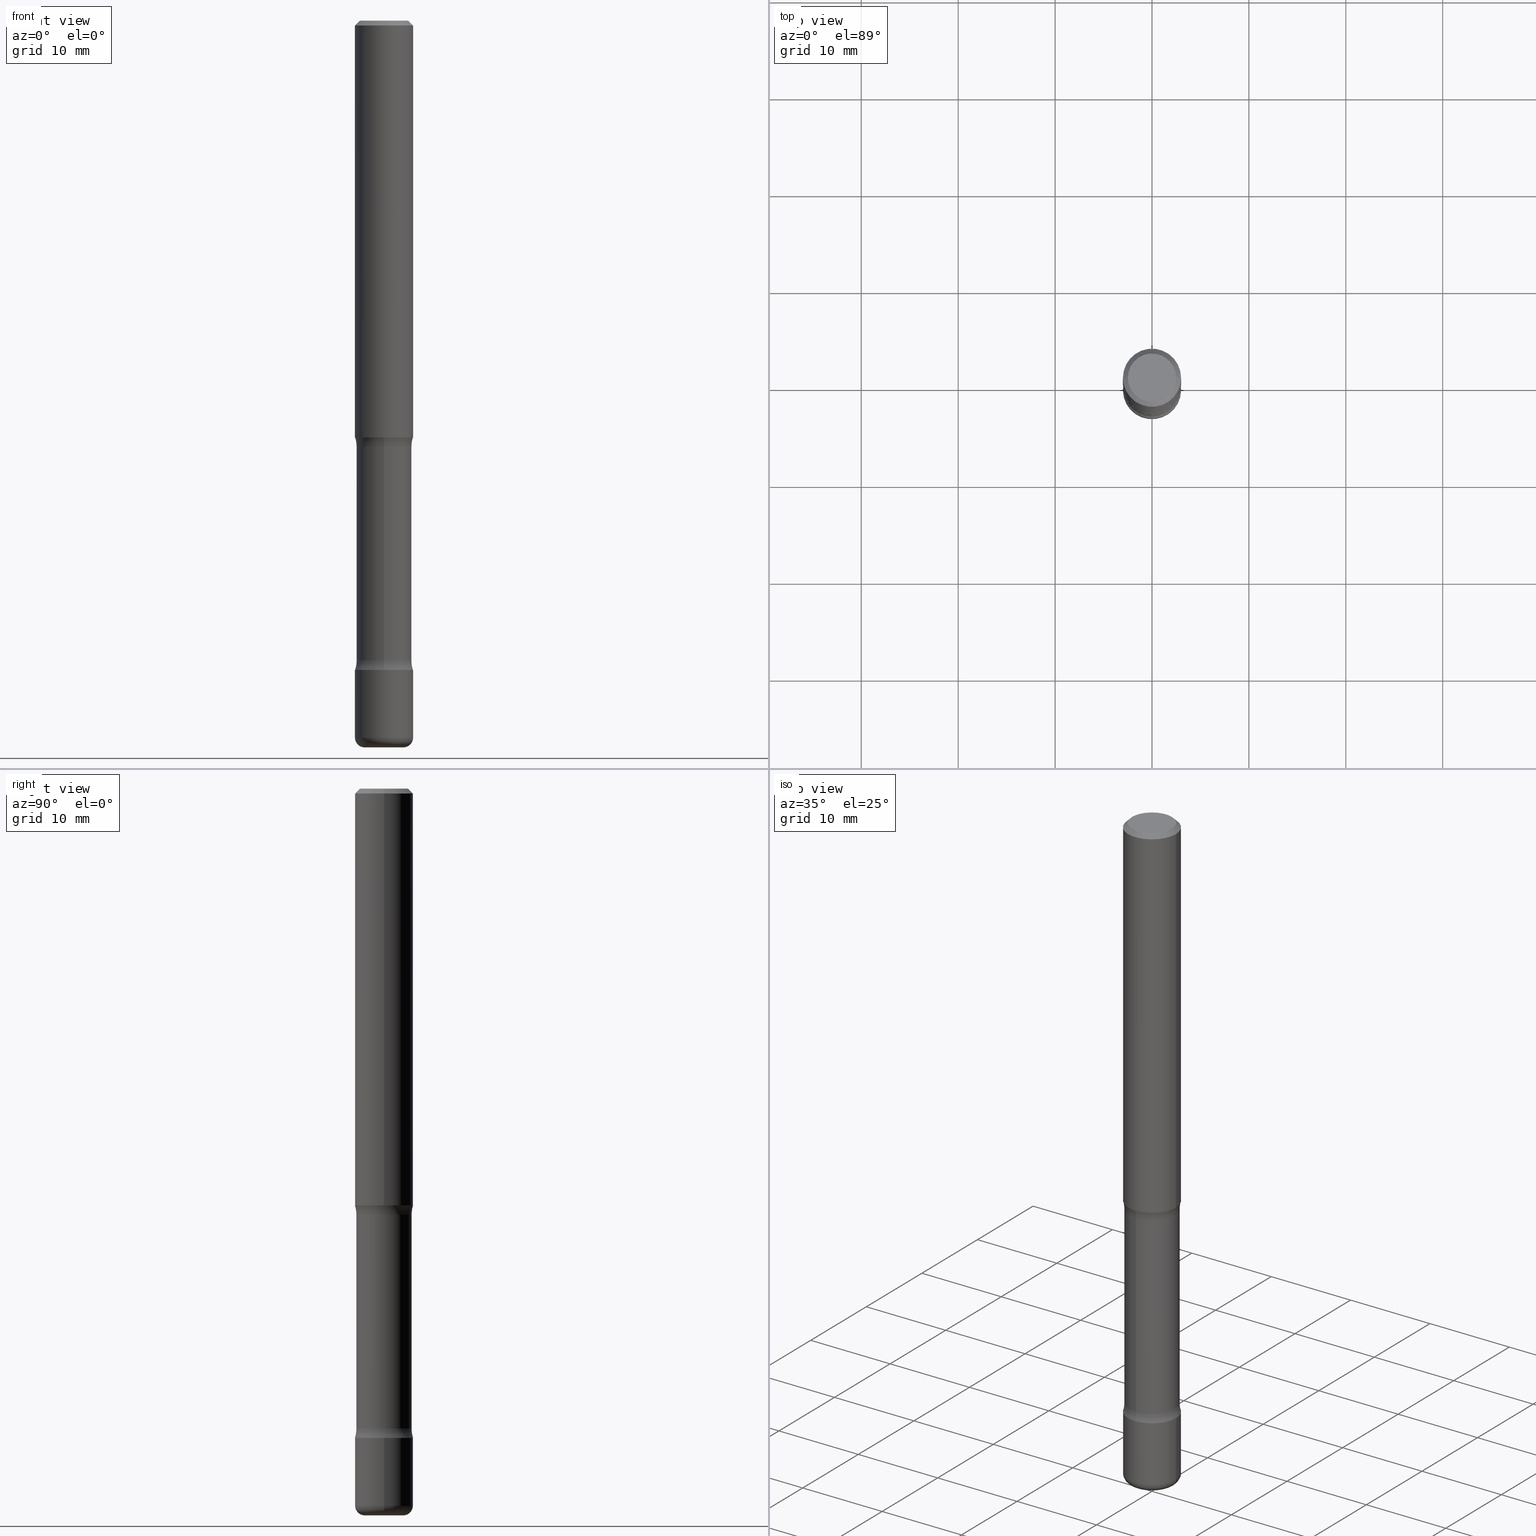
[diagram: canonical four-view strip — front | top / right | iso, engineering-drawing reading convention]
A machine part, canonical four-view strip (front | top / right | iso — engineering-drawing reading convention). The complete STEP part file that produces these views, byte-faithful:
ISO-10303-21;
HEADER;
FILE_DESCRIPTION (( 'STEP AP203' ),
    '1' );
FILE_NAME ('45187.STEP',
    '2024-03-02T05:05:20',
    ( '' ),
    ( '' ),
    'SwSTEP 2.0',
    'SolidWorks 2023',
    '' );
FILE_SCHEMA (( 'CONFIG_CONTROL_DESIGN' ));
ENDSEC;

DATA;
#1 = EDGE_LOOP ( 'NONE', ( #221, #207, #180, #419 ) ) ;
#2 = DIRECTION ( 'NONE',  ( 1.000000000000000000, 0.000000000000000000, 0.000000000000000000 ) ) ;
#3 = ADVANCED_FACE ( 'NONE', ( #223 ), #355, .T. ) ;
#4 = VERTEX_POINT ( 'NONE', #22 ) ;
#5 = CALENDAR_DATE ( 2024, 2, 3 ) ;
#6 = CIRCLE ( 'NONE', #269, 0.1180999999999992472 ) ;
#7 = ORIENTED_EDGE ( 'NONE', *, *, #517, .F. ) ;
#8 = PLANE ( 'NONE',  #110 ) ;
#9 = PERSON_AND_ORGANIZATION ( #348, #149 ) ;
#10 = ADVANCED_FACE ( 'NONE', ( #547 ), #144, .T. ) ;
#11 = CYLINDRICAL_SURFACE ( 'NONE', #291, 0.1119999999999993778 ) ;
#12 = EDGE_LOOP ( 'NONE', ( #485, #226 ) ) ;
#13 = DIRECTION ( 'NONE',  ( 6.982962677686265922E-15, 1.000000000000000000, -4.718596271060237416E-15 ) ) ;
#14 = EDGE_LOOP ( 'NONE', ( #340, #538, #236, #64 ) ) ;
#15 = DIMENSIONAL_EXPONENTS ( 1.000000000000000000, 0.000000000000000000, 0.000000000000000000, 0.000000000000000000, 0.000000000000000000, 0.000000000000000000, 0.000000000000000000 ) ;
#16 = APPROVAL_ROLE ( '' ) ;
#17 = CARTESIAN_POINT ( 'NONE',  ( 6.404022266748872909E-29, -9.006860273218774693E-15, -2.599228119050268404 ) ) ;
#18 = EDGE_LOOP ( 'NONE', ( #523, #46, #265, #234 ) ) ;
#19 = AXIS2_PLACEMENT_3D ( 'NONE', #391, #515, #342 ) ;
#20 = LOCAL_TIME ( 0, 5, 20.00000000000000000, #251 ) ;
#21 = DIRECTION ( 'NONE',  ( 1.000000000000000000, -6.982962677686247778E-15, 0.000000000000000000 ) ) ;
#22 = CARTESIAN_POINT ( 'NONE',  ( -0.1181000000000007877, -9.332930761652935594E-15, -2.913399999999998879 ) ) ;
#23 = CARTESIAN_POINT ( 'NONE',  ( 5.011042631637117785E-29, -4.933704852319903840E-15, -1.731571880949727804 ) ) ;
#24 = DIRECTION ( 'NONE',  ( 1.000000000000000000, -6.982962677686267499E-15, 0.000000000000000000 ) ) ;
#25 = ORIENTED_EDGE ( 'NONE', *, *, #227, .T. ) ;
#26 = DIRECTION ( 'NONE',  ( 1.000000000000000000, -6.982962677686265922E-15, 0.000000000000000000 ) ) ;
#27 = ORIENTED_EDGE ( 'NONE', *, *, #155, .F. ) ;
#28 = AXIS2_PLACEMENT_3D ( 'NONE', #279, #283, #67 ) ;
#29 = CIRCLE ( 'NONE', #112, 0.03940000000000045549 ) ;
#30 = CARTESIAN_POINT ( 'NONE',  ( 6.450657616955149868E-29, -9.209829475600442370E-15, -2.637799999999998146 ) ) ;
#31 = ADVANCED_FACE ( 'NONE', ( #139 ), #312, .F. ) ;
#32 = ORIENTED_EDGE ( 'NONE', *, *, #224, .F. ) ;
#33 = CARTESIAN_POINT ( 'NONE',  ( 4.140178688871433218E-29, -5.911077906661440642E-15, -1.692999999999998506 ) ) ;
#34 = CC_DESIGN_DATE_AND_TIME_ASSIGNMENT ( #486, #162, ( #386 ) ) ;
#35 = CONICAL_SURFACE ( 'NONE', #429, 0.1181000000000003020, 0.7853981633974480570 ) ;
#36 = LOCAL_TIME ( 0, 5, 20.00000000000000000, #304 ) ;
#37 = CARTESIAN_POINT ( 'NONE',  ( 4.140178688871433218E-29, -5.911077906661440642E-15, -1.692999999999998506 ) ) ;
#38 = DATE_AND_TIME ( #131, #491 ) ;
#39 = PERSON_AND_ORGANIZATION_ROLE ( 'design_owner' ) ;
#40 = AXIS2_PLACEMENT_3D ( 'NONE', #103, #468, #560 ) ;
#41 = VECTOR ( 'NONE', #392, 39.37007874015748143 ) ;
#42 = ORIENTED_EDGE ( 'NONE', *, *, #541, .T. ) ;
#43 =( NAMED_UNIT ( * ) PLANE_ANGLE_UNIT ( ) SI_UNIT ( $, .RADIAN. ) );
#44 = ORIENTED_EDGE ( 'NONE', *, *, #540, .T. ) ;
#45 = EDGE_CURVE ( 'NONE', #398, #85, #6, .T. ) ;
#46 = ORIENTED_EDGE ( 'NONE', *, *, #235, .T. ) ;
#47 = EDGE_CURVE ( 'NONE', #447, #417, #244, .T. ) ;
#48 = CARTESIAN_POINT ( 'NONE',  ( 0.000000000000000000, 0.000000000000000000, 0.000000000000000000 ) ) ;
#49 = DIRECTION ( 'NONE',  ( -2.445468806185136597E-29, 3.491481338843145583E-15, 1.000000000000000000 ) ) ;
#50 = DIRECTION ( 'NONE',  ( 1.000000000000000000, -6.982962677686267499E-15, 0.000000000000000000 ) ) ;
#51 = CIRCLE ( 'NONE', #217, 0.1249999999999999584 ) ;
#52 = AXIS2_PLACEMENT_3D ( 'NONE', #23, #320, #151 ) ;
#53 = ORIENTED_EDGE ( 'NONE', *, *, #242, .F. ) ;
#54 = ORIENTED_EDGE ( 'NONE', *, *, #461, .T. ) ;
#55 = CC_DESIGN_DATE_AND_TIME_ASSIGNMENT ( #173, #394, ( #118 ) ) ;
#56 = CARTESIAN_POINT ( 'NONE',  ( -0.1181000000000004407, -8.851804633160347123E-15, -2.637799999999998146 ) ) ;
#57 = CARTESIAN_POINT ( 'NONE',  ( -1.625938025471788234E-15, -0.2370000000000089257, -2.599228119050267516 ) ) ;
#58 = DIRECTION ( 'NONE',  ( 2.445468806185136597E-29, -3.491481338843145583E-15, -1.000000000000000000 ) ) ;
#59 = CIRCLE ( 'NONE', #421, 0.1181000000000006489 ) ;
#60 = CC_DESIGN_APPROVAL ( #518, ( #337 ) ) ;
#61 = ADVANCED_FACE ( 'NONE', ( #161 ), #70, .T. ) ;
#62 = ORIENTED_EDGE ( 'NONE', *, *, #374, .T. ) ;
#63 = DIRECTION ( 'NONE',  ( 1.000000000000000000, -6.982962677686266711E-15, 4.876176775795935793E-29 ) ) ;
#64 = ORIENTED_EDGE ( 'NONE', *, *, #185, .F. ) ;
#65 = LINE ( 'NONE', #239, #407 ) ;
#66 = AXIS2_PLACEMENT_3D ( 'NONE', #164, #347, #168 ) ;
#67 = DIRECTION ( 'NONE',  ( 1.000000000000000000, -6.982962677686266711E-15, 0.000000000000000000 ) ) ;
#68 = CC_DESIGN_PERSON_AND_ORGANIZATION_ASSIGNMENT ( #514, #125, ( #386 ) ) ;
#69 = DIRECTION ( 'NONE',  ( -2.445468806185136597E-29, 3.491481338843145583E-15, 1.000000000000000000 ) ) ;
#70 = CYLINDRICAL_SURFACE ( 'NONE', #325, 0.1181000000000005656 ) ;
#71 = DIRECTION ( 'NONE',  ( 6.982962677686265922E-15, 1.000000000000000000, -4.626330217890351981E-15 ) ) ;
#72 = CLOSED_SHELL ( 'NONE', ( #250, #306, #31, #290, #104, #264, #389, #301 ) ) ;
#73 = CIRCLE ( 'NONE', #557, 0.1249999999999999584 ) ;
#74 = LENGTH_MEASURE_WITH_UNIT ( LENGTH_MEASURE( 0.02539999999999999897 ), #554 );
#75 = APPROVAL_STATUS ( 'not_yet_approved' ) ;
#76 = DIRECTION ( 'NONE',  ( -2.445468806185136877E-29, 3.491481338843145188E-15, 1.000000000000000000 ) ) ;
#77 = EDGE_LOOP ( 'NONE', ( #418, #42, #87, #152 ) ) ;
#78 = ADVANCED_FACE ( 'NONE', ( #513 ), #425, .T. ) ;
#79 = CIRCLE ( 'NONE', #556, 0.1181000000000004407 ) ;
#80 = VECTOR ( 'NONE', #478, 39.37007874015748143 ) ;
#81 = EDGE_LOOP ( 'NONE', ( #188, #255 ) ) ;
#82 = FACE_OUTER_BOUND ( 'NONE', #1, .T. ) ;
#83 = DIRECTION ( 'NONE',  ( -2.445468806185136877E-29, 3.491481338843145188E-15, 1.000000000000000000 ) ) ;
#84 = DIRECTION ( 'NONE',  ( -2.445468806185136597E-29, 3.491481338843145583E-15, 1.000000000000000000 ) ) ;
#85 = VERTEX_POINT ( 'NONE', #380 ) ;
#86 = CARTESIAN_POINT ( 'NONE',  ( -7.893002946435583008E-16, -0.1120000000000037355, -1.731571880949727360 ) ) ;
#87 = ORIENTED_EDGE ( 'NONE', *, *, #336, .F. ) ;
#88 = PLANE ( 'NONE',  #385 ) ;
#89 = PLANE ( 'NONE',  #552 ) ;
#90 = TOROIDAL_SURFACE ( 'NONE', #448, 0.07870000000000045015, 0.03940000000000045549 ) ;
#91 = CIRCLE ( 'NONE', #245, 0.1181000000000004407 ) ;
#92 = ORIENTED_EDGE ( 'NONE', *, *, #243, .F. ) ;
#93 = CARTESIAN_POINT ( 'NONE',  ( 7.220980290903470182E-29, -1.030964609733603853E-14, -2.952799999999999869 ) ) ;
#94 = CARTESIAN_POINT ( 'NONE',  ( 4.949768150455351141E-29, -4.751699718702731192E-15, -1.692999999999998284 ) ) ;
#95 = ORIENTED_EDGE ( 'NONE', *, *, #508, .T. ) ;
#96 = EDGE_CURVE ( 'NONE', #481, #277, #261, .T. ) ;
#97 = DIRECTION ( 'NONE',  ( 1.588579028894789859E-29, -4.718596271060237416E-15, -1.000000000000000000 ) ) ;
#98 = ORIENTED_EDGE ( 'NONE', *, *, #227, .F. ) ;
#99 = TOROIDAL_SURFACE ( 'NONE', #548, 0.2369999999999987395, 0.1249999999999999584 ) ;
#100 = DIRECTION ( 'NONE',  ( -1.000000000000000000, 6.982962677686265922E-15, -4.876176775795935793E-29 ) ) ;
#101 = ORIENTED_EDGE ( 'NONE', *, *, #446, .T. ) ;
#102 = EDGE_LOOP ( 'NONE', ( #460, #440, #271, #124 ) ) ;
#103 = CARTESIAN_POINT ( 'NONE',  ( 7.124628819939774466E-29, -1.017208173258561774E-14, -2.913399999999998879 ) ) ;
#104 = ADVANCED_FACE ( 'NONE', ( #399 ), #354, .F. ) ;
#105 = AXIS2_PLACEMENT_3D ( 'NONE', #142, #377, #150 ) ;
#106 = DIRECTION ( 'NONE',  ( 1.588579028894789859E-29, -4.718596271060237416E-15, -1.000000000000000000 ) ) ;
#107 = CARTESIAN_POINT ( 'NONE',  ( -0.1181000000000004824, 8.391509709326817470E-16, -5.809262341591066905E-30 ) ) ;
#108 = DIRECTION ( 'NONE',  ( -2.445468806185136597E-29, 3.491481338843145583E-15, 1.000000000000000000 ) ) ;
#109 = DIRECTION ( 'NONE',  ( -2.445468806185136597E-29, 3.491481338843145583E-15, 1.000000000000000000 ) ) ;
#110 = AXIS2_PLACEMENT_3D ( 'NONE', #295, #179, #351 ) ;
#111 = CARTESIAN_POINT ( 'NONE',  ( 7.124628819939774466E-29, -1.017208173258561774E-14, -2.913399999999998879 ) ) ;
#112 = AXIS2_PLACEMENT_3D ( 'NONE', #194, #200, #553 ) ;
#113 = PERSON_AND_ORGANIZATION ( #348, #149 ) ;
#114 = ORIENTED_EDGE ( 'NONE', *, *, #248, .F. ) ;
#115 = CARTESIAN_POINT ( 'NONE',  ( 8.350811314681758556E-46, -1.192274536304357760E-31, -3.414809992080329023E-17 ) ) ;
#116 = MECHANICAL_CONTEXT ( 'NONE', #136, 'mechanical' ) ;
#117 = DIRECTION ( 'NONE',  ( -6.982962677686266711E-15, -1.000000000000000000, 3.491481338843145583E-15 ) ) ;
#118 = PRODUCT_DEFINITION ( 'UNKNOWN', '', #337, #469 ) ;
#119 = ORIENTED_EDGE ( 'NONE', *, *, #498, .T. ) ;
#120 = ADVANCED_FACE ( 'NONE', ( #456 ), #35, .T. ) ;
#121 = CARTESIAN_POINT ( 'NONE',  ( 0.07870000000000045015, -1.085920526006994994E-14, -2.952799999999999869 ) ) ;
#122 = AXIS2_PLACEMENT_3D ( 'NONE', #93, #445, #272 ) ;
#123 = LOCAL_TIME ( 0, 5, 20.00000000000000000, #323 ) ;
#124 = ORIENTED_EDGE ( 'NONE', *, *, #516, .F. ) ;
#125 = PERSON_AND_ORGANIZATION_ROLE ( 'classification_officer' ) ;
#126 = CARTESIAN_POINT ( 'NONE',  ( 6.450657616955149868E-29, -9.209829475600442370E-15, -2.637799999999998146 ) ) ;
#127 = DIRECTION ( 'NONE',  ( 1.588579028894789859E-29, -4.718596271060237416E-15, -1.000000000000000000 ) ) ;
#128 = LINE ( 'NONE', #317, #41 ) ;
#129 = ORIENTED_EDGE ( 'NONE', *, *, #45, .T. ) ;
#130 = ADVANCED_FACE ( 'NONE', ( #153 ), #512, .T. ) ;
#131 = CALENDAR_DATE ( 2024, 2, 3 ) ;
#132 = CARTESIAN_POINT ( 'NONE',  ( 0.1181000000000005656, -8.246878922347520097E-16, 5.758764772215027766E-30 ) ) ;
#133 = DIRECTION ( 'NONE',  ( -2.445468806185136597E-29, 3.491481338843145583E-15, 1.000000000000000000 ) ) ;
#134 = EDGE_LOOP ( 'NONE', ( #140, #543, #129, #476 ) ) ;
#135 = AXIS2_PLACEMENT_3D ( 'NONE', #17, #368, #542 ) ;
#136 = APPLICATION_CONTEXT ( 'configuration controlled 3d designs of mechanical parts and assemblies' ) ;
#137 = FACE_OUTER_BOUND ( 'NONE', #488, .T. ) ;
#138 = CC_DESIGN_SECURITY_CLASSIFICATION ( #386, ( #337 ) ) ;
#139 = FACE_OUTER_BOUND ( 'NONE', #134, .T. ) ;
#140 = ORIENTED_EDGE ( 'NONE', *, *, #461, .F. ) ;
#141 = EDGE_CURVE ( 'NONE', #85, #398, #148, .T. ) ;
#142 = CARTESIAN_POINT ( 'NONE',  ( 4.140178688871433218E-29, -5.911077906661440642E-15, -1.692999999999998506 ) ) ;
#143 = PRODUCT_DEFINITION_SHAPE ( 'NONE', 'NONE',  #118 ) ;
#144 = PLANE ( 'NONE',  #479 ) ;
#145 = CALENDAR_DATE ( 2024, 2, 3 ) ;
#146 = VERTEX_POINT ( 'NONE', #199 ) ;
#147 = AXIS2_PLACEMENT_3D ( 'NONE', #411, #58, #189 ) ;
#148 = CIRCLE ( 'NONE', #405, 0.1180999999999992472 ) ;
#149 = ORGANIZATION ( 'UNSPECIFIED', 'UNSPECIFIED', '' ) ;
#150 = DIRECTION ( 'NONE',  ( 1.000000000000000000, -6.982962677686265922E-15, 4.876176775795935793E-29 ) ) ;
#151 = DIRECTION ( 'NONE',  ( 6.982962677686266711E-15, 1.000000000000000000, -4.878299988686236186E-15 ) ) ;
#152 = ORIENTED_EDGE ( 'NONE', *, *, #333, .F. ) ;
#153 = FACE_OUTER_BOUND ( 'NONE', #77, .T. ) ;
#154 = CARTESIAN_POINT ( 'NONE',  ( -7.683757757503377165E-16, -0.1120000000000100637, -2.952799999999998093 ) ) ;
#155 = EDGE_CURVE ( 'NONE', #146, #277, #341, .T. ) ;
#156 = CARTESIAN_POINT ( 'NONE',  ( 0.1181000000000007877, -1.099676962482037073E-14, -2.913399999999998879 ) ) ;
#157 = CARTESIAN_POINT ( 'NONE',  ( 6.450657616955149868E-29, -9.209829475600442370E-15, -2.637799999999998146 ) ) ;
#158 = CIRCLE ( 'NONE', #455, 0.1181000000000004407 ) ;
#159 = CIRCLE ( 'NONE', #430, 0.1119999999999999607 ) ;
#160 = ADVANCED_BREP_SHAPE_REPRESENTATION ( '45187', ( #433, #237, #428, #345 ), #302 ) ;
#161 = FACE_OUTER_BOUND ( 'NONE', #298, .T. ) ;
#162 = DATE_TIME_ROLE ( 'classification_date' ) ;
#163 = CC_DESIGN_APPROVAL ( #499, ( #118 ) ) ;
#164 = CARTESIAN_POINT ( 'NONE',  ( 1.654962154611708445E-15, 0.2369999999999909124, -2.599228119050269292 ) ) ;
#165 = ORIENTED_EDGE ( 'NONE', *, *, #498, .F. ) ;
#166 = PERSON_AND_ORGANIZATION_ROLE ( 'creator' ) ;
#167 = EDGE_CURVE ( 'NONE', #417, #318, #473, .T. ) ;
#168 = DIRECTION ( 'NONE',  ( -6.982962677686265922E-15, -1.000000000000000000, 0.000000000000000000 ) ) ;
#169 = CC_DESIGN_PERSON_AND_ORGANIZATION_ASSIGNMENT ( #9, #39, ( #465 ) ) ;
#170 = ORIENTED_EDGE ( 'NONE', *, *, #416, .T. ) ;
#171 = LINE ( 'NONE', #484, #379 ) ;
#172 = ORIENTED_EDGE ( 'NONE', *, *, #96, .T. ) ;
#173 = DATE_AND_TIME ( #5, #286 ) ;
#174 = DIRECTION ( 'NONE',  ( 6.982962677686265922E-15, 1.000000000000000000, -4.878299988686211732E-15 ) ) ;
#175 = CC_DESIGN_APPROVAL ( #397, ( #386 ) ) ;
#176 = ORIENTED_EDGE ( 'NONE', *, *, #47, .F. ) ;
#177 = APPLICATION_PROTOCOL_DEFINITION ( 'international standard', 'config_control_design', 1994, #435 ) ;
#178 = FACE_OUTER_BOUND ( 'NONE', #102, .T. ) ;
#179 = DIRECTION ( 'NONE',  ( 2.438088387897960049E-29, -3.491481338843145188E-15, -1.000000000000000000 ) ) ;
#180 = ORIENTED_EDGE ( 'NONE', *, *, #540, .F. ) ;
#181 = DIRECTION ( 'NONE',  ( 1.588579028894789859E-29, -4.718596271060237416E-15, -1.000000000000000000 ) ) ;
#182 = DIRECTION ( 'NONE',  ( 2.438088387897960049E-29, -3.491481338843145188E-15, -1.000000000000000000 ) ) ;
#183 = APPROVAL_DATE_TIME ( #412, #397 ) ;
#184 = VECTOR ( 'NONE', #437, 39.37007874015748143 ) ;
#185 = EDGE_CURVE ( 'NONE', #4, #458, #218, .T. ) ;
#186 = VERTEX_POINT ( 'NONE', #475 ) ;
#187 = DIRECTION ( 'NONE',  ( 1.588579028894789859E-29, -4.718596271060237416E-15, -1.000000000000000000 ) ) ;
#188 = ORIENTED_EDGE ( 'NONE', *, *, #224, .T. ) ;
#189 = DIRECTION ( 'NONE',  ( -1.000000000000000000, 6.982962677686266711E-15, 0.000000000000000000 ) ) ;
#190 = AXIS2_PLACEMENT_3D ( 'NONE', #503, #501, #316 ) ;
#191 = EDGE_CURVE ( 'NONE', #303, #146, #59, .T. ) ;
#192 = CARTESIAN_POINT ( 'NONE',  ( 7.220980290903470182E-29, -1.030964609733603853E-14, -2.952799999999999869 ) ) ;
#193 = CARTESIAN_POINT ( 'NONE',  ( 4.890937612370289799E-31, -6.982962677686315028E-17, -0.02000000000000006981 ) ) ;
#194 = CARTESIAN_POINT ( 'NONE',  ( -0.07870000000000045015, -9.612884599542415790E-15, -2.913399999999998879 ) ) ;
#195 = DIRECTION ( 'NONE',  ( -2.445468806185136597E-29, 3.491481338843145583E-15, 1.000000000000000000 ) ) ;
#196 = CLOSED_SHELL ( 'NONE', ( #525, #3, #120, #535, #371, #322 ) ) ;
#197 = VECTOR ( 'NONE', #76, 39.37007874015748143 ) ;
#198 = DIRECTION ( 'NONE',  ( -2.445468806185136597E-29, 3.491481338843145583E-15, 1.000000000000000000 ) ) ;
#199 = CARTESIAN_POINT ( 'NONE',  ( -0.1181000000000006628, -2.151302795786464307E-15, -1.692999999999998506 ) ) ;
#200 = DIRECTION ( 'NONE',  ( 7.105427357601001859E-15, 1.000000000000000000, -3.491481338843145583E-15 ) ) ;
#201 = CARTESIAN_POINT ( 'NONE',  ( 0.1181000000000003020, -8.800544403136831054E-16, -0.02000000000000006981 ) ) ;
#202 = FACE_OUTER_BOUND ( 'NONE', #232, .T. ) ;
#203 = PERSON_AND_ORGANIZATION ( #348, #149 ) ;
#204 = CIRCLE ( 'NONE', #122, 0.07870000000000045015 ) ;
#205 = CC_DESIGN_PERSON_AND_ORGANIZATION_ASSIGNMENT ( #203, #346, ( #337 ) ) ;
#206 = AXIS2_PLACEMENT_3D ( 'NONE', #254, #522, #339 ) ;
#207 = ORIENTED_EDGE ( 'NONE', *, *, #517, .T. ) ;
#208 = PERSON_AND_ORGANIZATION_ROLE ( 'creator' ) ;
#209 = CARTESIAN_POINT ( 'NONE',  ( 7.124628819939774466E-29, -1.017208173258561774E-14, -2.913399999999998879 ) ) ;
#210 = ORIENTED_EDGE ( 'NONE', *, *, #331, .F. ) ;
#211 = PERSON_AND_ORGANIZATION ( #348, #149 ) ;
#212 = EDGE_CURVE ( 'NONE', #458, #387, #305, .T. ) ;
#213 = DIRECTION ( 'NONE',  ( -2.445468806185136877E-29, 3.491481338843145188E-15, 1.000000000000000000 ) ) ;
#214 = EDGE_LOOP ( 'NONE', ( #381, #170 ) ) ;
#215 = APPLICATION_PROTOCOL_DEFINITION ( 'international standard', 'config_control_design', 1994, #136 ) ;
#216 = DIRECTION ( 'NONE',  ( -6.982962677686265922E-15, -1.000000000000000000, 4.718596271060237416E-15 ) ) ;
#217 = AXIS2_PLACEMENT_3D ( 'NONE', #241, #246, #332 ) ;
#218 = CIRCLE ( 'NONE', #258, 0.1181000000000006767 ) ;
#219 = AXIS2_PLACEMENT_3D ( 'NONE', #115, #198, #427 ) ;
#220 = FACE_OUTER_BOUND ( 'NONE', #353, .T. ) ;
#221 = ORIENTED_EDGE ( 'NONE', *, *, #504, .T. ) ;
#222 = CARTESIAN_POINT ( 'NONE',  ( 0.000000000000000000, 0.000000000000000000, 0.000000000000000000 ) ) ;
#223 = FACE_OUTER_BOUND ( 'NONE', #18, .T. ) ;
#224 = EDGE_CURVE ( 'NONE', #186, #447, #79, .T. ) ;
#225 = CARTESIAN_POINT ( 'NONE',  ( -0.07870000000000045015, -9.541689862972883722E-15, -2.952799999999999869 ) ) ;
#226 = ORIENTED_EDGE ( 'NONE', *, *, #45, .F. ) ;
#227 = EDGE_CURVE ( 'NONE', #277, #275, #471, .T. ) ;
#228 = EDGE_CURVE ( 'NONE', #296, #398, #51, .T. ) ;
#229 = CARTESIAN_POINT ( 'NONE',  ( 6.389383135773382663E-29, -9.027824341983271300E-15, -2.599228119050268848 ) ) ;
#230 = DIRECTION ( 'NONE',  ( 6.982962677686265922E-15, 1.000000000000000000, -4.878299988686185699E-15 ) ) ;
#231 = VECTOR ( 'NONE', #83, 39.37007874015748143 ) ;
#232 = EDGE_LOOP ( 'NONE', ( #267, #62 ) ) ;
#233 = DIRECTION ( 'NONE',  ( 1.000000000000000000, -6.982962677686266711E-15, 0.000000000000000000 ) ) ;
#234 = ORIENTED_EDGE ( 'NONE', *, *, #96, .F. ) ;
#235 = EDGE_CURVE ( 'NONE', #349, #275, #390, .T. ) ;
#236 = ORIENTED_EDGE ( 'NONE', *, *, #333, .T. ) ;
#237 = MANIFOLD_SOLID_BREP ( 'Body-Move/Copy2[2]', #196 ) ;
#238 = FACE_OUTER_BOUND ( 'NONE', #546, .T. ) ;
#239 = CARTESIAN_POINT ( 'NONE',  ( 7.820918199009269802E-16, 0.1119999999999886919, -2.952799999999998981 ) ) ;
#240 = AXIS2_PLACEMENT_3D ( 'NONE', #222, #84, #521 ) ;
#241 = CARTESIAN_POINT ( 'NONE',  ( -1.625938025471793953E-15, -0.2370000000000036522, -1.731571880949727138 ) ) ;
#242 = EDGE_CURVE ( 'NONE', #558, #310, #414, .T. ) ;
#243 = EDGE_CURVE ( 'NONE', #387, #373, #158, .T. ) ;
#244 = CIRCLE ( 'NONE', #526, 0.1249999999999999584 ) ;
#245 = AXIS2_PLACEMENT_3D ( 'NONE', #157, #370, #545 ) ;
#246 = DIRECTION ( 'NONE',  ( 1.000000000000000000, -6.860497997771530774E-15, 4.825771055884887036E-29 ) ) ;
#247 = DIRECTION ( 'NONE',  ( -6.982962677686265922E-15, -1.000000000000000000, 0.000000000000000000 ) ) ;
#248 = EDGE_CURVE ( 'NONE', #447, #186, #276, .T. ) ;
#249 = APPROVAL_ROLE ( '' ) ;
#250 = ADVANCED_FACE ( 'NONE', ( #82 ), #289, .T. ) ;
#251 = COORDINATED_UNIVERSAL_TIME_OFFSET ( 5, 0, .BEHIND. ) ;
#252 = CARTESIAN_POINT ( 'NONE',  ( 4.140178688871433218E-29, -5.911077906661440642E-15, -1.692999999999998506 ) ) ;
#253 = CARTESIAN_POINT ( 'NONE',  ( 7.820918199009254025E-16, 0.1119999999999909263, -2.599228119050269292 ) ) ;
#254 = CARTESIAN_POINT ( 'NONE',  ( 0.000000000000000000, 0.000000000000000000, 0.000000000000000000 ) ) ;
#255 = ORIENTED_EDGE ( 'NONE', *, *, #248, .T. ) ;
#256 = CARTESIAN_POINT ( 'NONE',  ( -0.1181000000000003020, 7.548582654578872324E-16, -0.02000000000000006981 ) ) ;
#257 = PERSON_AND_ORGANIZATION ( #348, #149 ) ;
#258 = AXIS2_PLACEMENT_3D ( 'NONE', #111, #439, #294 ) ;
#259 = CIRCLE ( 'NONE', #415, 0.1181000000000006489 ) ;
#260 = ORIENTED_EDGE ( 'NONE', *, *, #185, .T. ) ;
#261 = LINE ( 'NONE', #256, #184 ) ;
#262 = CYLINDRICAL_SURFACE ( 'NONE', #206, 0.1181000000000004824 ) ;
#263 = DIRECTION ( 'NONE',  ( 1.000000000000000000, -6.982962677686262766E-15, 0.000000000000000000 ) ) ;
#264 = ADVANCED_FACE ( 'NONE', ( #358 ), #88, .F. ) ;
#265 = ORIENTED_EDGE ( 'NONE', *, *, #466, .T. ) ;
#266 = CALENDAR_DATE ( 2024, 2, 3 ) ;
#267 = ORIENTED_EDGE ( 'NONE', *, *, #493, .T. ) ;
#268 = CLOSED_SHELL ( 'NONE', ( #78, #130, #10, #315, #61, #314 ) ) ;
#269 = AXIS2_PLACEMENT_3D ( 'NONE', #94, #187, #273 ) ;
#270 = CIRCLE ( 'NONE', #219, 0.09810000000000028419 ) ;
#271 = ORIENTED_EDGE ( 'NONE', *, *, #466, .F. ) ;
#272 = DIRECTION ( 'NONE',  ( 1.000000000000000000, -6.982962677686254878E-15, 0.000000000000000000 ) ) ;
#273 = DIRECTION ( 'NONE',  ( 6.982962677686265922E-15, 1.000000000000000000, -4.626330217890399313E-15 ) ) ;
#274 = CARTESIAN_POINT ( 'NONE',  ( 7.820918199009036102E-16, 0.1119999999999938822, -1.731571880949728470 ) ) ;
#275 = VERTEX_POINT ( 'NONE', #406 ) ;
#276 = CIRCLE ( 'NONE', #357, 0.1181000000000004407 ) ;
#277 = VERTEX_POINT ( 'NONE', #533 ) ;
#278 = VERTEX_POINT ( 'NONE', #274 ) ;
#279 = CARTESIAN_POINT ( 'NONE',  ( 4.890937612370289799E-31, -6.982962677686315028E-17, -0.02000000000000006981 ) ) ;
#280 = DIRECTION ( 'NONE',  ( 1.000000000000000000, -6.982962677686266711E-15, 4.877161320636752779E-29 ) ) ;
#281 = DIRECTION ( 'NONE',  ( -2.445468806185136597E-29, 3.491481338843145583E-15, 1.000000000000000000 ) ) ;
#282 = ORIENTED_EDGE ( 'NONE', *, *, #235, .F. ) ;
#283 = DIRECTION ( 'NONE',  ( -2.445468806185136597E-29, 3.491481338843145583E-15, 1.000000000000000000 ) ) ;
#284 = CARTESIAN_POINT ( 'NONE',  ( 0.000000000000000000, 0.000000000000000000, 0.000000000000000000 ) ) ;
#285 = CIRCLE ( 'NONE', #366, 0.1181000000000006767 ) ;
#286 = LOCAL_TIME ( 0, 5, 20.00000000000000000, #524 ) ;
#287 = PRODUCT_RELATED_PRODUCT_CATEGORY ( 'detail', '', ( #465 ) ) ;
#288 = DIRECTION ( 'NONE',  ( 1.588579028894789859E-29, -4.718596271060237416E-15, -1.000000000000000000 ) ) ;
#289 = CYLINDRICAL_SURFACE ( 'NONE', #480, 0.1119999999999993778 ) ;
#290 = ADVANCED_FACE ( 'NONE', ( #423 ), #99, .F. ) ;
#291 = AXIS2_PLACEMENT_3D ( 'NONE', #410, #181, #364 ) ;
#292 = CIRCLE ( 'NONE', #52, 0.1119999999999988088 ) ;
#293 = EDGE_CURVE ( 'NONE', #310, #558, #204, .T. ) ;
#294 = DIRECTION ( 'NONE',  ( 1.000000000000000000, -6.982962677686265922E-15, 0.000000000000000000 ) ) ;
#295 = CARTESIAN_POINT ( 'NONE',  ( 6.450657616955149868E-29, -9.209829475600442370E-15, -2.637799999999998146 ) ) ;
#296 = VERTEX_POINT ( 'NONE', #86 ) ;
#297 = DIRECTION ( 'NONE',  ( 1.588579028894789859E-29, -4.718596271060237416E-15, -1.000000000000000000 ) ) ;
#298 = EDGE_LOOP ( 'NONE', ( #536, #260, #362, #451 ) ) ;
#299 =( CONVERSION_BASED_UNIT ( 'INCH', #74 ) LENGTH_UNIT ( ) NAMED_UNIT ( #15 ) );
#300 = VECTOR ( 'NONE', #311, 39.37007874015748143 ) ;
#301 = ADVANCED_FACE ( 'NONE', ( #220 ), #11, .T. ) ;
#302 =( GEOMETRIC_REPRESENTATION_CONTEXT ( 3 ) GLOBAL_UNCERTAINTY_ASSIGNED_CONTEXT ( ( #350 ) ) GLOBAL_UNIT_ASSIGNED_CONTEXT ( ( #299, #43, #442 ) ) REPRESENTATION_CONTEXT ( 'NONE', 'WORKASPACE' ) );
#303 = VERTEX_POINT ( 'NONE', #537 ) ;
#304 = COORDINATED_UNIVERSAL_TIME_OFFSET ( 5, 0, .BEHIND. ) ;
#305 = LINE ( 'NONE', #132, #231 ) ;
#306 = ADVANCED_FACE ( 'NONE', ( #137 ), #502, .F. ) ;
#307 = ORIENTED_EDGE ( 'NONE', *, *, #336, .T. ) ;
#308 = PERSON_AND_ORGANIZATION ( #348, #149 ) ;
#309 = FACE_OUTER_BOUND ( 'NONE', #14, .T. ) ;
#310 = VERTEX_POINT ( 'NONE', #225 ) ;
#311 = DIRECTION ( 'NONE',  ( 0.7071067811865473507, -7.319954787623256045E-15, -0.7071067811865476838 ) ) ;
#312 = TOROIDAL_SURFACE ( 'NONE', #190, 0.2369999999999987395, 0.1249999999999999584 ) ;
#313 = CIRCLE ( 'NONE', #449, 0.1119999999999988088 ) ;
#314 = ADVANCED_FACE ( 'NONE', ( #409 ), #8, .F. ) ;
#315 = ADVANCED_FACE ( 'NONE', ( #309 ), #90, .T. ) ;
#316 = DIRECTION ( 'NONE',  ( 6.982962677686265922E-15, 1.000000000000000000, -4.718596271060237416E-15 ) ) ;
#317 = CARTESIAN_POINT ( 'NONE',  ( 0.1181000000000004824, -8.246878922347513194E-16, 5.758764772215023562E-30 ) ) ;
#318 = VERTEX_POINT ( 'NONE', #253 ) ;
#319 = DIRECTION ( 'NONE',  ( 1.588579028894789859E-29, -4.718596271060237416E-15, -1.000000000000000000 ) ) ;
#320 = DIRECTION ( 'NONE',  ( 1.588579028894789859E-29, -4.718596271060237416E-15, -1.000000000000000000 ) ) ;
#321 = CARTESIAN_POINT ( 'NONE',  ( 5.021406214490756707E-29, -4.918863611814992003E-15, -1.731571880949728248 ) ) ;
#322 = ADVANCED_FACE ( 'NONE', ( #483 ), #534, .T. ) ;
#323 = COORDINATED_UNIVERSAL_TIME_OFFSET ( 5, 0, .BEHIND. ) ;
#324 = PLANE ( 'NONE',  #105 ) ;
#325 = AXIS2_PLACEMENT_3D ( 'NONE', #334, #109, #472 ) ;
#326 = CARTESIAN_POINT ( 'NONE',  ( -2.140863699641103723E-28, -5.130888754939066278E-14, -2.952799999999998981 ) ) ;
#327 = CARTESIAN_POINT ( 'NONE',  ( 8.350811314681758556E-46, -1.192274536304357760E-31, -3.414809992080329023E-17 ) ) ;
#328 = ORIENTED_EDGE ( 'NONE', *, *, #493, .F. ) ;
#329 = CARTESIAN_POINT ( 'NONE',  ( 1.654962154611686357E-15, 0.2369999999999937990, -1.731571880949729358 ) ) ;
#330 = CARTESIAN_POINT ( 'NONE',  ( 4.949768150455351141E-29, -4.751699718702731192E-15, -1.692999999999998284 ) ) ;
#331 = EDGE_CURVE ( 'NONE', #186, #318, #490, .T. ) ;
#332 = DIRECTION ( 'NONE',  ( 6.860497997771531562E-15, 1.000000000000000000, 0.000000000000000000 ) ) ;
#333 = EDGE_CURVE ( 'NONE', #558, #458, #464, .T. ) ;
#334 = CARTESIAN_POINT ( 'NONE',  ( 0.000000000000000000, 0.000000000000000000, 0.000000000000000000 ) ) ;
#335 = AXIS2_PLACEMENT_3D ( 'NONE', #37, #474, #544 ) ;
#336 = EDGE_CURVE ( 'NONE', #458, #4, #285, .T. ) ;
#337 = PRODUCT_DEFINITION_FORMATION_WITH_SPECIFIED_SOURCE ( 'ANY', '', #465, .NOT_KNOWN. ) ;
#338 = CARTESIAN_POINT ( 'NONE',  ( 6.404022266748872909E-29, -9.006860273218774693E-15, -2.599228119050268404 ) ) ;
#339 = DIRECTION ( 'NONE',  ( 1.000000000000000000, -6.982962677686265133E-15, 4.876176775795935793E-29 ) ) ;
#340 = ORIENTED_EDGE ( 'NONE', *, *, #541, .F. ) ;
#341 = LINE ( 'NONE', #107, #197 ) ;
#342 = DIRECTION ( 'NONE',  ( 6.982962677686265922E-15, 1.000000000000000000, -4.878299988686185699E-15 ) ) ;
#343 = AXIS2_PLACEMENT_3D ( 'NONE', #192, #49, #530 ) ;
#344 = CARTESIAN_POINT ( 'NONE',  ( -0.09810000000000028419, 7.199434520694558791E-16, -3.414809992080820212E-17 ) ) ;
#345 = AXIS2_PLACEMENT_3D ( 'NONE', #48, #404, #2 ) ;
#346 = PERSON_AND_ORGANIZATION_ROLE ( 'design_supplier' ) ;
#347 = DIRECTION ( 'NONE',  ( -1.000000000000000000, 6.982962677686265922E-15, -4.883557194083112340E-29 ) ) ;
#348 = PERSON ( 'UNSPECIFIED', 'UNSPECIFIED', 'UNSPECIFIED', ('UNSPECIFIED'), ('UNSPECIFIED'), ('UNSPECIFIED') ) ;
#349 = VERTEX_POINT ( 'NONE', #452 ) ;
#350 = UNCERTAINTY_MEASURE_WITH_UNIT (LENGTH_MEASURE( 1.000000000000000082E-05 ), #299, 'distance_accuracy_value', 'NONE');
#351 = DIRECTION ( 'NONE',  ( -1.000000000000000000, 6.982962677686265922E-15, -4.876176775795935793E-29 ) ) ;
#352 = DIRECTION ( 'NONE',  ( 2.438088387897960049E-29, -3.491481338843145188E-15, -1.000000000000000000 ) ) ;
#353 = EDGE_LOOP ( 'NONE', ( #7, #54, #101, #505 ) ) ;
#354 = PLANE ( 'NONE',  #335 ) ;
#355 = CONICAL_SURFACE ( 'NONE', #147, 0.1181000000000003020, 0.7853981633974480570 ) ;
#356 = PERSON_AND_ORGANIZATION ( #348, #149 ) ;
#357 = AXIS2_PLACEMENT_3D ( 'NONE', #408, #106, #470 ) ;
#358 = FACE_OUTER_BOUND ( 'NONE', #81, .T. ) ;
#359 = APPROVAL_PERSON_ORGANIZATION ( #113, #397, #16 ) ;
#360 = EDGE_LOOP ( 'NONE', ( #307, #95, #92, #376 ) ) ;
#361 = APPROVAL_DATE_TIME ( #401, #499 ) ;
#362 = ORIENTED_EDGE ( 'NONE', *, *, #212, .T. ) ;
#363 = DIRECTION ( 'NONE',  ( -2.445468806185136597E-29, 3.491481338843145583E-15, 1.000000000000000000 ) ) ;
#364 = DIRECTION ( 'NONE',  ( 6.982962677686265922E-15, 1.000000000000000000, -4.878299988686211732E-15 ) ) ;
#365 = DIRECTION ( 'NONE',  ( -1.000000000000000000, 6.982962677686265922E-15, -4.876176775795935793E-29 ) ) ;
#366 = AXIS2_PLACEMENT_3D ( 'NONE', #375, #496, #26 ) ;
#367 = FACE_OUTER_BOUND ( 'NONE', #463, .T. ) ;
#368 = DIRECTION ( 'NONE',  ( 1.588579028894789859E-29, -4.718596271060237416E-15, -1.000000000000000000 ) ) ;
#369 = DIRECTION ( 'NONE',  ( 6.860497997771531562E-15, 1.000000000000000000, 0.000000000000000000 ) ) ;
#370 = DIRECTION ( 'NONE',  ( -2.445468806185136597E-29, 3.491481338843145583E-15, 1.000000000000000000 ) ) ;
#371 = ADVANCED_FACE ( 'NONE', ( #367 ), #324, .F. ) ;
#372 = DIRECTION ( 'NONE',  ( 6.982962677686266711E-15, 1.000000000000000000, -4.878299988686236186E-15 ) ) ;
#373 = VERTEX_POINT ( 'NONE', #56 ) ;
#374 = EDGE_CURVE ( 'NONE', #349, #481, #434, .T. ) ;
#375 = CARTESIAN_POINT ( 'NONE',  ( 7.124628819939774466E-29, -1.017208173258561774E-14, -2.913399999999998879 ) ) ;
#376 = ORIENTED_EDGE ( 'NONE', *, *, #212, .F. ) ;
#377 = DIRECTION ( 'NONE',  ( -2.438088387897960049E-29, 3.491481338843145188E-15, 1.000000000000000000 ) ) ;
#378 = AXIS2_PLACEMENT_3D ( 'NONE', #284, #69, #63 ) ;
#379 = VECTOR ( 'NONE', #213, 39.37007874015748143 ) ;
#380 = CARTESIAN_POINT ( 'NONE',  ( 8.246878922347925374E-16, 0.1180999999999945288, -1.692999999999998950 ) ) ;
#381 = ORIENTED_EDGE ( 'NONE', *, *, #243, .T. ) ;
#382 = DIRECTION ( 'NONE',  ( 2.445468806185136597E-29, -3.491481338843145583E-15, -1.000000000000000000 ) ) ;
#383 = DIRECTION ( 'NONE',  ( 1.588579028894789859E-29, -4.718596271060237416E-15, -1.000000000000000000 ) ) ;
#384 = DIRECTION ( 'NONE',  ( 1.588579028894789859E-29, -4.718596271060237416E-15, -1.000000000000000000 ) ) ;
#385 = AXIS2_PLACEMENT_3D ( 'NONE', #126, #487, #216 ) ;
#386 = SECURITY_CLASSIFICATION ( '', '', #559 ) ;
#387 = VERTEX_POINT ( 'NONE', #462 ) ;
#388 = DIRECTION ( 'NONE',  ( 6.982962677686265922E-15, 1.000000000000000000, -4.718596271060237416E-15 ) ) ;
#389 = ADVANCED_FACE ( 'NONE', ( #238 ), #422, .F. ) ;
#390 = LINE ( 'NONE', #201, #300 ) ;
#391 = CARTESIAN_POINT ( 'NONE',  ( 6.389383135773382663E-29, -9.027824341983271300E-15, -2.599228119050268848 ) ) ;
#392 = DIRECTION ( 'NONE',  ( -2.445468806185136877E-29, 3.491481338843145188E-15, 1.000000000000000000 ) ) ;
#393 = AXIS2_PLACEMENT_3D ( 'NONE', #327, #363, #280 ) ;
#394 = DATE_TIME_ROLE ( 'creation_date' ) ;
#395 = CARTESIAN_POINT ( 'NONE',  ( 0.07870000000000045015, -1.072164089531952915E-14, -2.913399999999998879 ) ) ;
#396 = ORIENTED_EDGE ( 'NONE', *, *, #191, .F. ) ;
#397 = APPROVAL ( #520, 'UNSPECIFIED' ) ;
#398 = VERTEX_POINT ( 'NONE', #511 ) ;
#399 = FACE_OUTER_BOUND ( 'NONE', #12, .T. ) ;
#400 = EDGE_CURVE ( 'NONE', #278, #85, #73, .T. ) ;
#401 = DATE_AND_TIME ( #266, #20 ) ;
#402 = CARTESIAN_POINT ( 'NONE',  ( 6.951060011057008387E-29, -1.069618730098441919E-14, -2.952799999999998537 ) ) ;
#403 = EDGE_LOOP ( 'NONE', ( #550, #453, #436, #443 ) ) ;
#404 = DIRECTION ( 'NONE',  ( 0.000000000000000000, 0.000000000000000000, 1.000000000000000000 ) ) ;
#405 = AXIS2_PLACEMENT_3D ( 'NONE', #330, #297, #555 ) ;
#406 = CARTESIAN_POINT ( 'NONE',  ( 0.1181000000000003020, -8.800544403136831054E-16, -0.02000000000000006981 ) ) ;
#407 = VECTOR ( 'NONE', #384, 39.37007874015748143 ) ;
#408 = CARTESIAN_POINT ( 'NONE',  ( 6.450657616955149868E-29, -9.209829475600442370E-15, -2.637799999999998146 ) ) ;
#409 = FACE_OUTER_BOUND ( 'NONE', #214, .T. ) ;
#410 = CARTESIAN_POINT ( 'NONE',  ( 6.951060011057008387E-29, -1.069618730098441919E-14, -2.952799999999998537 ) ) ;
#411 = CARTESIAN_POINT ( 'NONE',  ( 4.890937612370289799E-31, -6.982962677686315028E-17, -0.02000000000000006981 ) ) ;
#412 = DATE_AND_TIME ( #145, #123 ) ;
#413 = DIRECTION ( 'NONE',  ( 1.000000000000000000, -6.860497997771530774E-15, 4.825771055884887036E-29 ) ) ;
#414 = CIRCLE ( 'NONE', #343, 0.07870000000000045015 ) ;
#415 = AXIS2_PLACEMENT_3D ( 'NONE', #33, #507, #24 ) ;
#416 = EDGE_CURVE ( 'NONE', #373, #387, #91, .T. ) ;
#417 = VERTEX_POINT ( 'NONE', #420 ) ;
#418 = ORIENTED_EDGE ( 'NONE', *, *, #242, .T. ) ;
#419 = ORIENTED_EDGE ( 'NONE', *, *, #446, .F. ) ;
#420 = CARTESIAN_POINT ( 'NONE',  ( -7.893002946435520885E-16, -0.1120000000000089951, -2.599228119050268404 ) ) ;
#421 = AXIS2_PLACEMENT_3D ( 'NONE', #252, #195, #50 ) ;
#422 = TOROIDAL_SURFACE ( 'NONE', #549, 0.2369999999999999329, 0.1249999999999999584 ) ;
#423 = FACE_OUTER_BOUND ( 'NONE', #403, .T. ) ;
#424 = CC_DESIGN_PERSON_AND_ORGANIZATION_ASSIGNMENT ( #308, #166, ( #337 ) ) ;
#425 = CYLINDRICAL_SURFACE ( 'NONE', #378, 0.1181000000000005656 ) ;
#426 = EDGE_LOOP ( 'NONE', ( #27, #119, #531, #98 ) ) ;
#427 = DIRECTION ( 'NONE',  ( 1.000000000000000000, -6.982962677686266711E-15, 4.877161320636752779E-29 ) ) ;
#428 = MANIFOLD_SOLID_BREP ( 'Body-Move/Copy2[4]', #72 ) ;
#429 = AXIS2_PLACEMENT_3D ( 'NONE', #193, #382, #551 ) ;
#430 = AXIS2_PLACEMENT_3D ( 'NONE', #229, #319, #230 ) ;
#431 = CALENDAR_DATE ( 2024, 2, 3 ) ;
#432 = APPROVAL_STATUS ( 'not_yet_approved' ) ;
#433 = MANIFOLD_SOLID_BREP ( 'Body-Move/Copy2[1]', #268 ) ;
#434 = CIRCLE ( 'NONE', #393, 0.09810000000000028419 ) ;
#435 = APPLICATION_CONTEXT ( 'configuration controlled 3d designs of mechanical parts and assemblies' ) ;
#436 = ORIENTED_EDGE ( 'NONE', *, *, #400, .T. ) ;
#437 = DIRECTION ( 'NONE',  ( -0.7071067811865473507, 2.468850131082255088E-15, -0.7071067811865476838 ) ) ;
#438 = APPROVAL_PERSON_ORGANIZATION ( #356, #518, #529 ) ;
#439 = DIRECTION ( 'NONE',  ( -2.445468806185136597E-29, 3.491481338843145583E-15, 1.000000000000000000 ) ) ;
#440 = ORIENTED_EDGE ( 'NONE', *, *, #155, .T. ) ;
#441 = DIRECTION ( 'NONE',  ( -1.000000000000000000, 6.982962677686265922E-15, -4.883557194083112340E-29 ) ) ;
#442 =( NAMED_UNIT ( * ) SI_UNIT ( $, .STERADIAN. ) SOLID_ANGLE_UNIT ( ) );
#443 = ORIENTED_EDGE ( 'NONE', *, *, #141, .T. ) ;
#444 = APPROVAL_DATE_TIME ( #38, #518 ) ;
#445 = DIRECTION ( 'NONE',  ( -2.445468806185136597E-29, 3.491481338843145583E-15, 1.000000000000000000 ) ) ;
#446 = EDGE_CURVE ( 'NONE', #278, #318, #65, .T. ) ;
#447 = VERTEX_POINT ( 'NONE', #495 ) ;
#448 = AXIS2_PLACEMENT_3D ( 'NONE', #209, #133, #450 ) ;
#449 = AXIS2_PLACEMENT_3D ( 'NONE', #497, #383, #372 ) ;
#450 = DIRECTION ( 'NONE',  ( 1.000000000000000000, -6.982962677686269077E-15, 4.883557194083114022E-29 ) ) ;
#451 = ORIENTED_EDGE ( 'NONE', *, *, #416, .F. ) ;
#452 = CARTESIAN_POINT ( 'NONE',  ( 0.09810000000000028419, -7.765346469475362235E-16, -3.414809992079818112E-17 ) ) ;
#453 = ORIENTED_EDGE ( 'NONE', *, *, #504, .F. ) ;
#454 = EDGE_LOOP ( 'NONE', ( #282, #328, #172, #25 ) ) ;
#455 = AXIS2_PLACEMENT_3D ( 'NONE', #510, #108, #263 ) ;
#456 = FACE_OUTER_BOUND ( 'NONE', #454, .T. ) ;
#457 = APPROVAL_PERSON_ORGANIZATION ( #211, #499, #249 ) ;
#458 = VERTEX_POINT ( 'NONE', #156 ) ;
#459 = CARTESIAN_POINT ( 'NONE',  ( 4.890937612370289799E-31, -6.982962677686315028E-17, -0.02000000000000006981 ) ) ;
#460 = ORIENTED_EDGE ( 'NONE', *, *, #191, .T. ) ;
#461 = EDGE_CURVE ( 'NONE', #296, #278, #292, .T. ) ;
#462 = CARTESIAN_POINT ( 'NONE',  ( 0.1181000000000004407, -1.003451736783519379E-14, -2.637799999999998146 ) ) ;
#463 = EDGE_LOOP ( 'NONE', ( #396, #165 ) ) ;
#464 = CIRCLE ( 'NONE', #539, 0.03940000000000045549 ) ;
#465 = PRODUCT ( '45187', '45187', '', ( #116 ) ) ;
#466 = EDGE_CURVE ( 'NONE', #275, #277, #482, .T. ) ;
#467 = DIRECTION ( 'NONE',  ( 1.588579028894789859E-29, -4.718596271060237416E-15, -1.000000000000000000 ) ) ;
#468 = DIRECTION ( 'NONE',  ( -2.445468806185136597E-29, 3.491481338843145583E-15, 1.000000000000000000 ) ) ;
#469 = DESIGN_CONTEXT ( 'detailed design', #435, 'design' ) ;
#470 = DIRECTION ( 'NONE',  ( 6.982962677686265922E-15, 1.000000000000000000, -4.626330217890351981E-15 ) ) ;
#471 = CIRCLE ( 'NONE', #28, 0.1181000000000003020 ) ;
#472 = DIRECTION ( 'NONE',  ( 1.000000000000000000, -6.982962677686266711E-15, 4.876176775795935793E-29 ) ) ;
#473 = CIRCLE ( 'NONE', #19, 0.1119999999999999607 ) ;
#474 = DIRECTION ( 'NONE',  ( 1.588579028894789859E-29, -4.718596271060237416E-15, -1.000000000000000000 ) ) ;
#475 = CARTESIAN_POINT ( 'NONE',  ( 8.246878922348159074E-16, 0.1180999999999912675, -2.637799999999999034 ) ) ;
#476 = ORIENTED_EDGE ( 'NONE', *, *, #400, .F. ) ;
#477 = CC_DESIGN_PERSON_AND_ORGANIZATION_ASSIGNMENT ( #257, #208, ( #118 ) ) ;
#478 = DIRECTION ( 'NONE',  ( 1.588579028894789859E-29, -4.718596271060237416E-15, -1.000000000000000000 ) ) ;
#479 = AXIS2_PLACEMENT_3D ( 'NONE', #326, #182, #365 ) ;
#480 = AXIS2_PLACEMENT_3D ( 'NONE', #402, #288, #174 ) ;
#481 = VERTEX_POINT ( 'NONE', #344 ) ;
#482 = CIRCLE ( 'NONE', #528, 0.1181000000000003020 ) ;
#483 = FACE_OUTER_BOUND ( 'NONE', #426, .T. ) ;
#484 = CARTESIAN_POINT ( 'NONE',  ( -0.1181000000000005656, 8.391509709326823386E-16, -5.809262341591071810E-30 ) ) ;
#485 = ORIENTED_EDGE ( 'NONE', *, *, #141, .F. ) ;
#486 = DATE_AND_TIME ( #431, #36 ) ;
#487 = DIRECTION ( 'NONE',  ( -1.588579028894789859E-29, 4.718596271060237416E-15, 1.000000000000000000 ) ) ;
#488 = EDGE_LOOP ( 'NONE', ( #114, #500, #489, #210 ) ) ;
#489 = ORIENTED_EDGE ( 'NONE', *, *, #167, .T. ) ;
#490 = CIRCLE ( 'NONE', #66, 0.1249999999999999584 ) ;
#491 = LOCAL_TIME ( 0, 5, 20.00000000000000000, #532 ) ;
#492 = ORIENTED_EDGE ( 'NONE', *, *, #331, .T. ) ;
#493 = EDGE_CURVE ( 'NONE', #481, #349, #270, .T. ) ;
#494 = SHAPE_DEFINITION_REPRESENTATION ( #143, #160 ) ;
#495 = CARTESIAN_POINT ( 'NONE',  ( -8.102248135367565011E-16, -0.1181000000000096833, -2.637799999999997702 ) ) ;
#496 = DIRECTION ( 'NONE',  ( -2.445468806185136597E-29, 3.491481338843145583E-15, 1.000000000000000000 ) ) ;
#497 = CARTESIAN_POINT ( 'NONE',  ( 5.011042631637117785E-29, -4.933704852319903840E-15, -1.731571880949727804 ) ) ;
#498 = EDGE_CURVE ( 'NONE', #146, #303, #259, .T. ) ;
#499 = APPROVAL ( #75, 'UNSPECIFIED' ) ;
#500 = ORIENTED_EDGE ( 'NONE', *, *, #47, .T. ) ;
#501 = DIRECTION ( 'NONE',  ( 1.588579028894789859E-29, -4.718596271060237416E-15, -1.000000000000000000 ) ) ;
#502 = TOROIDAL_SURFACE ( 'NONE', #135, 0.2369999999999999329, 0.1249999999999999584 ) ;
#503 = CARTESIAN_POINT ( 'NONE',  ( 5.021406214490756707E-29, -4.918863611814992003E-15, -1.731571880949728248 ) ) ;
#504 = EDGE_CURVE ( 'NONE', #278, #296, #313, .T. ) ;
#505 = ORIENTED_EDGE ( 'NONE', *, *, #167, .F. ) ;
#506 = CARTESIAN_POINT ( 'NONE',  ( 6.850286386810246244E-16, 0.09810000000000028419, -3.595883693009152023E-16 ) ) ;
#507 = DIRECTION ( 'NONE',  ( -2.445468806185136597E-29, 3.491481338843145583E-15, 1.000000000000000000 ) ) ;
#508 = EDGE_CURVE ( 'NONE', #4, #373, #171, .T. ) ;
#509 = LINE ( 'NONE', #154, #80 ) ;
#510 = CARTESIAN_POINT ( 'NONE',  ( 6.450657616955149868E-29, -9.209829475600442370E-15, -2.637799999999998146 ) ) ;
#511 = CARTESIAN_POINT ( 'NONE',  ( -8.102248135367633051E-16, -0.1181000000000040212, -1.692999999999997840 ) ) ;
#512 = TOROIDAL_SURFACE ( 'NONE', #40, 0.07870000000000045015, 0.03940000000000045549 ) ;
#513 = FACE_OUTER_BOUND ( 'NONE', #360, .T. ) ;
#514 = PERSON_AND_ORGANIZATION ( #348, #149 ) ;
#515 = DIRECTION ( 'NONE',  ( 1.588579028894789859E-29, -4.718596271060237416E-15, -1.000000000000000000 ) ) ;
#516 = EDGE_CURVE ( 'NONE', #303, #275, #128, .T. ) ;
#517 = EDGE_CURVE ( 'NONE', #296, #417, #509, .T. ) ;
#518 = APPROVAL ( #432, 'UNSPECIFIED' ) ;
#519 = ORIENTED_EDGE ( 'NONE', *, *, #293, .F. ) ;
#520 = APPROVAL_STATUS ( 'not_yet_approved' ) ;
#521 = DIRECTION ( 'NONE',  ( 1.000000000000000000, -6.982962677686265133E-15, 4.876176775795935793E-29 ) ) ;
#522 = DIRECTION ( 'NONE',  ( -2.445468806185136597E-29, 3.491481338843145583E-15, 1.000000000000000000 ) ) ;
#523 = ORIENTED_EDGE ( 'NONE', *, *, #374, .F. ) ;
#524 = COORDINATED_UNIVERSAL_TIME_OFFSET ( 5, 0, .BEHIND. ) ;
#525 = ADVANCED_FACE ( 'NONE', ( #178 ), #262, .T. ) ;
#526 = AXIS2_PLACEMENT_3D ( 'NONE', #57, #413, #369 ) ;
#527 = EDGE_LOOP ( 'NONE', ( #53, #519 ) ) ;
#528 = AXIS2_PLACEMENT_3D ( 'NONE', #459, #281, #233 ) ;
#529 = APPROVAL_ROLE ( '' ) ;
#530 = DIRECTION ( 'NONE',  ( 1.000000000000000000, -6.982962677686254878E-15, 0.000000000000000000 ) ) ;
#531 = ORIENTED_EDGE ( 'NONE', *, *, #516, .T. ) ;
#532 = COORDINATED_UNIVERSAL_TIME_OFFSET ( 5, 0, .BEHIND. ) ;
#533 = CARTESIAN_POINT ( 'NONE',  ( -0.1181000000000003020, 7.548582654578872324E-16, -0.02000000000000006981 ) ) ;
#534 = CYLINDRICAL_SURFACE ( 'NONE', #240, 0.1181000000000004824 ) ;
#535 = ADVANCED_FACE ( 'NONE', ( #202 ), #89, .F. ) ;
#536 = ORIENTED_EDGE ( 'NONE', *, *, #508, .F. ) ;
#537 = CARTESIAN_POINT ( 'NONE',  ( 0.1181000000000006489, -6.735765798896192849E-15, -1.692999999999998506 ) ) ;
#538 = ORIENTED_EDGE ( 'NONE', *, *, #293, .T. ) ;
#539 = AXIS2_PLACEMENT_3D ( 'NONE', #395, #117, #21 ) ;
#540 = EDGE_CURVE ( 'NONE', #318, #417, #159, .T. ) ;
#541 = EDGE_CURVE ( 'NONE', #310, #4, #29, .T. ) ;
#542 = DIRECTION ( 'NONE',  ( 6.982962677686265922E-15, 1.000000000000000000, -4.718596271060237416E-15 ) ) ;
#543 = ORIENTED_EDGE ( 'NONE', *, *, #228, .T. ) ;
#544 = DIRECTION ( 'NONE',  ( 6.982962677686265922E-15, 1.000000000000000000, -4.718596271060237416E-15 ) ) ;
#545 = DIRECTION ( 'NONE',  ( 1.000000000000000000, -6.982962677686262766E-15, 0.000000000000000000 ) ) ;
#546 = EDGE_LOOP ( 'NONE', ( #176, #32, #492, #44 ) ) ;
#547 = FACE_OUTER_BOUND ( 'NONE', #527, .T. ) ;
#548 = AXIS2_PLACEMENT_3D ( 'NONE', #321, #127, #13 ) ;
#549 = AXIS2_PLACEMENT_3D ( 'NONE', #338, #97, #388 ) ;
#550 = ORIENTED_EDGE ( 'NONE', *, *, #228, .F. ) ;
#551 = DIRECTION ( 'NONE',  ( -1.000000000000000000, 6.982962677686266711E-15, 0.000000000000000000 ) ) ;
#552 = AXIS2_PLACEMENT_3D ( 'NONE', #506, #352, #100 ) ;
#553 = DIRECTION ( 'NONE',  ( -1.000000000000000000, 7.105427357600993181E-15, 0.000000000000000000 ) ) ;
#554 =( LENGTH_UNIT ( ) NAMED_UNIT ( * ) SI_UNIT ( $, .METRE. ) );
#555 = DIRECTION ( 'NONE',  ( 6.982962677686265922E-15, 1.000000000000000000, -4.626330217890399313E-15 ) ) ;
#556 = AXIS2_PLACEMENT_3D ( 'NONE', #30, #467, #71 ) ;
#557 = AXIS2_PLACEMENT_3D ( 'NONE', #329, #441, #247 ) ;
#558 = VERTEX_POINT ( 'NONE', #121 ) ;
#559 = SECURITY_CLASSIFICATION_LEVEL ( 'unclassified' ) ;
#560 = DIRECTION ( 'NONE',  ( 1.000000000000000000, -6.982962677686269077E-15, 4.883557194083114022E-29 ) ) ;
ENDSEC;
END-ISO-10303-21;
